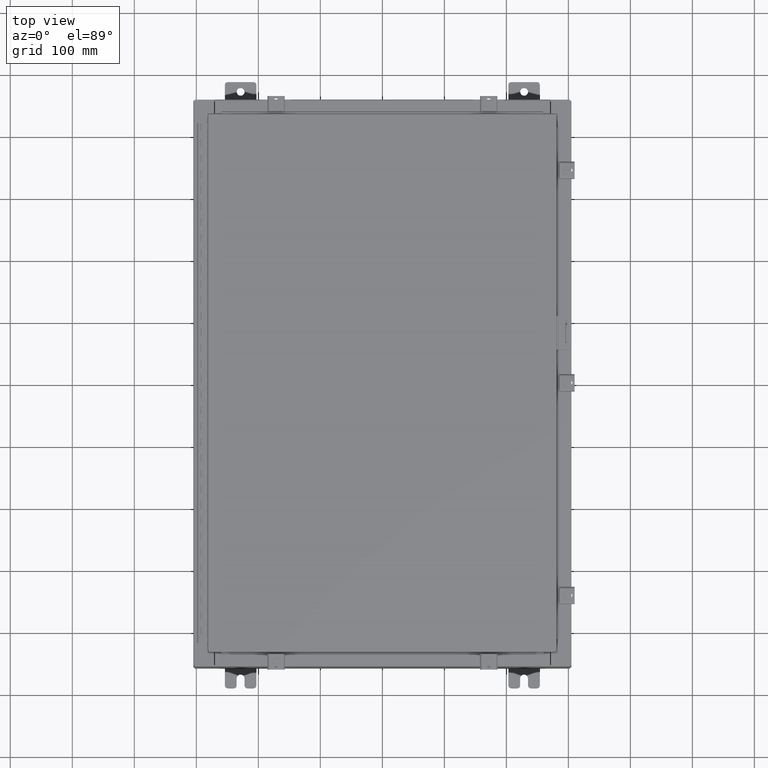
[diagram: clean part render]
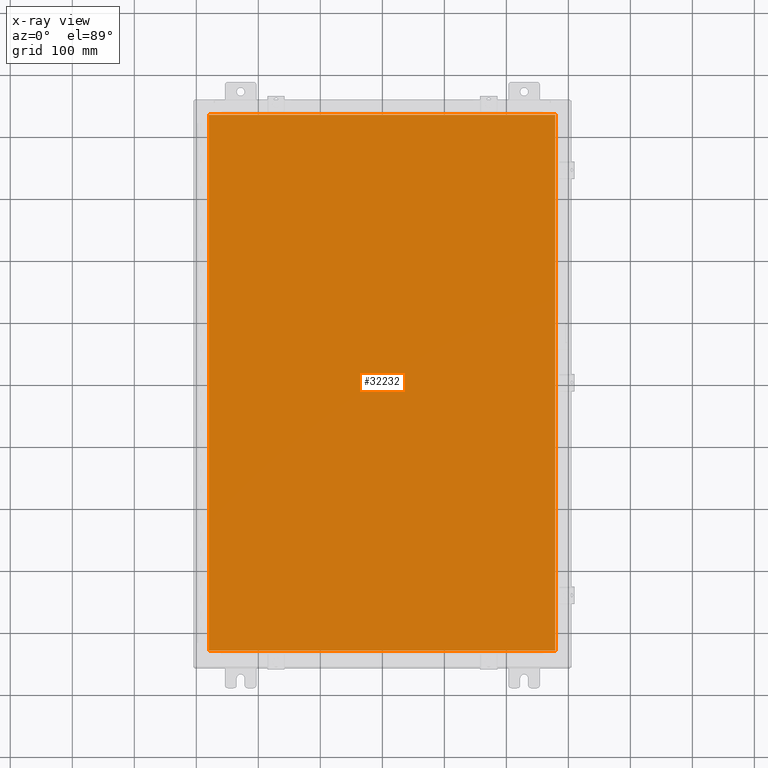
[diagram: x-ray — body ghosted, one internal face saturated and labeled with its STEP entity id]
A machine part, top view, then the same camera in x-ray: the body is ghosted and one INTERNAL B-rep face — a face not visible from any outside direction — is saturated and labeled: STEP entity #32232.
In plain terms, the highlighted planar face has unit normal (0, 0, -1).
Its self-contained STEP definition (entity closure, byte-faithful):
#770 = EDGE_CURVE ( 'NONE', #38866, #24059, #31125, .T. ) ;
#1400 = LINE ( 'NONE', #4163, #34979 ) ;
#1523 = CARTESIAN_POINT ( 'NONE',  ( 10.99029999999999600, -17.00629999999999600, -0.07470000000000000300 ) ) ;
#2040 = CARTESIAN_POINT ( 'NONE',  ( 10.99029999999999800, 17.00630000000000700, -0.07470000000000019700 ) ) ;
#4163 = CARTESIAN_POINT ( 'NONE',  ( -10.99030000000000500, 17.00630000000000700, -0.07470000000000347200 ) ) ;
#5263 = DIRECTION ( 'NONE',  ( -1.000000000000000000, -0.0000000000000000000, -0.0000000000000000000 ) ) ;
#7995 = CARTESIAN_POINT ( 'NONE',  ( -10.99030000000000000, -17.00629999999999600, -0.07470000000000000300 ) ) ;
#8239 = DIRECTION ( 'NONE',  ( 0.0000000000000000000, 0.0000000000000000000, -1.000000000000000000 ) ) ;
#10310 = ORIENTED_EDGE ( 'NONE', *, *, #24815, .F. ) ;
#12342 = EDGE_CURVE ( 'NONE', #24059, #23582, #22962, .T. ) ;
#15220 = ORIENTED_EDGE ( 'NONE', *, *, #12342, .F. ) ;
#15411 = ORIENTED_EDGE ( 'NONE', *, *, #32108, .F. ) ;
#16066 = EDGE_LOOP ( 'NONE', ( #15220, #20045, #15411, #10310 ) ) ;
#16390 = VERTEX_POINT ( 'NONE', #34936 ) ;
#17014 = LINE ( 'NONE', #2040, #24666 ) ;
#17944 = CARTESIAN_POINT ( 'NONE',  ( 0.0000000000000000000, 0.0000000000000000000, -0.07470000000000000300 ) ) ;
#20045 = ORIENTED_EDGE ( 'NONE', *, *, #770, .F. ) ;
#22962 = LINE ( 'NONE', #28975, #31621 ) ;
#23582 = VERTEX_POINT ( 'NONE', #27416 ) ;
#23782 = DIRECTION ( 'NONE',  ( 0.0000000000000000000, -1.000000000000000000, 0.0000000000000000000 ) ) ;
#24059 = VERTEX_POINT ( 'NONE', #1523 ) ;
#24666 = VECTOR ( 'NONE', #5263, 39.37007874015748100 ) ;
#24815 = EDGE_CURVE ( 'NONE', #23582, #16390, #17014, .T. ) ;
#26024 = AXIS2_PLACEMENT_3D ( 'NONE', #17944, #8239, #31066 ) ;
#27416 = CARTESIAN_POINT ( 'NONE',  ( 10.99029999999999600, 17.00630000000000700, -0.07470000000000000300 ) ) ;
#27769 = PLANE ( 'NONE',  #26024 ) ;
#28485 = CARTESIAN_POINT ( 'NONE',  ( -10.99030000000000000, -17.00629999999999600, -0.07469999999999910000 ) ) ;
#28783 = DIRECTION ( 'NONE',  ( 1.000000000000000000, -0.0000000000000000000, -0.0000000000000000000 ) ) ;
#28975 = CARTESIAN_POINT ( 'NONE',  ( 10.99029999999999600, -17.00629999999999200, -0.07470000000000019700 ) ) ;
#29900 = FACE_OUTER_BOUND ( 'NONE', #16066, .T. ) ;
#30089 = VECTOR ( 'NONE', #28783, 39.37007874015748100 ) ;
#31066 = DIRECTION ( 'NONE',  ( -1.000000000000000000, 0.0000000000000000000, -0.0000000000000000000 ) ) ;
#31125 = LINE ( 'NONE', #28485, #30089 ) ;
#31621 = VECTOR ( 'NONE', #41897, 39.37007874015748100 ) ;
#32108 = EDGE_CURVE ( 'NONE', #16390, #38866, #1400, .T. ) ;
#32232 = ADVANCED_FACE ( 'NONE', ( #29900 ), #27769, .T. ) ;
#34936 = CARTESIAN_POINT ( 'NONE',  ( -10.99030000000000100, 17.00630000000000700, -0.07470000000000000300 ) ) ;
#34979 = VECTOR ( 'NONE', #23782, 39.37007874015748100 ) ;
#38866 = VERTEX_POINT ( 'NONE', #7995 ) ;
#41897 = DIRECTION ( 'NONE',  ( 0.0000000000000000000, 1.000000000000000000, 0.0000000000000000000 ) ) ;